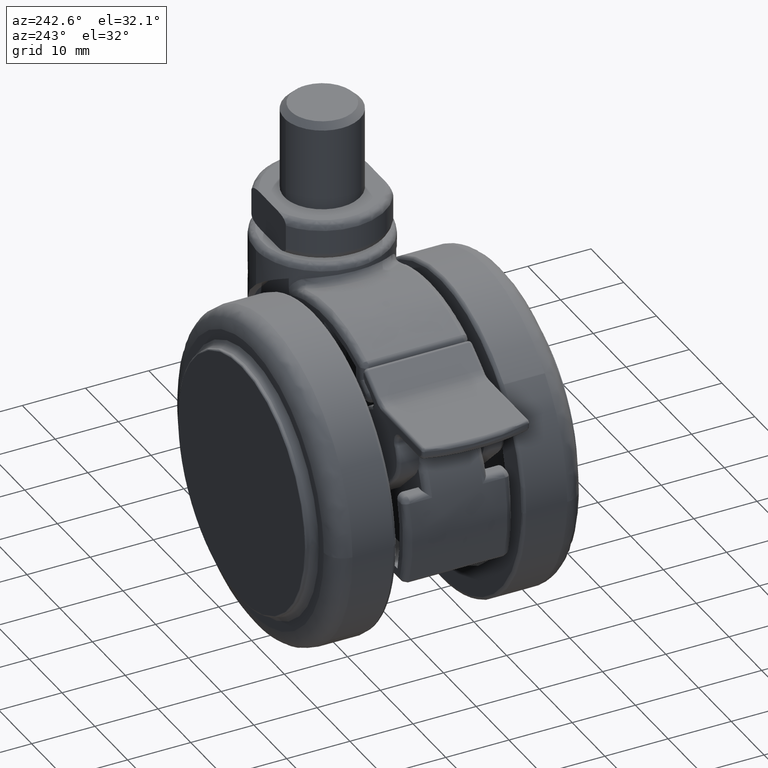
[diagram: clean part render]
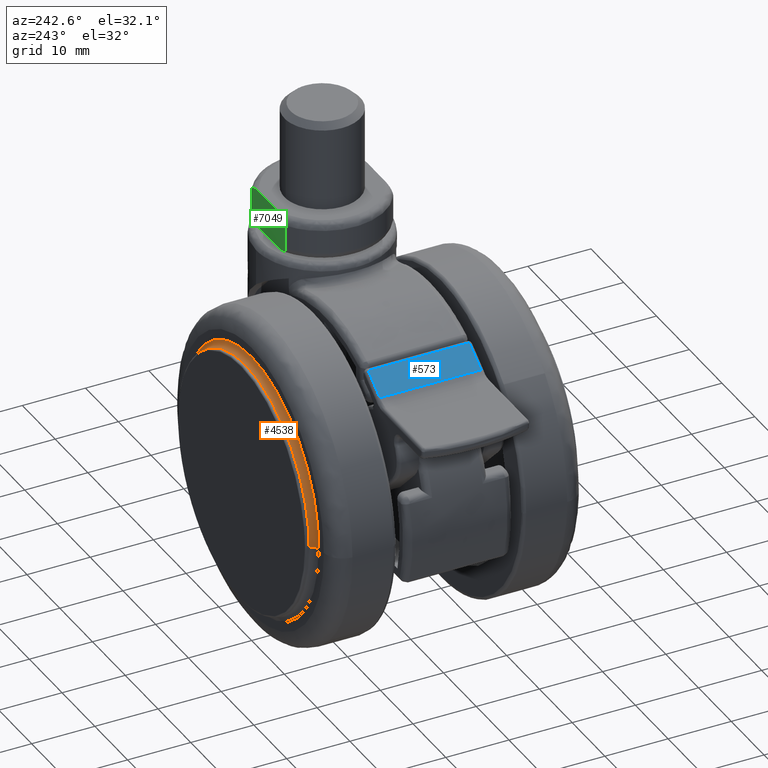
[diagram: same view with three faces highlighted in distinct colors, each labeled with its STEP entity id]
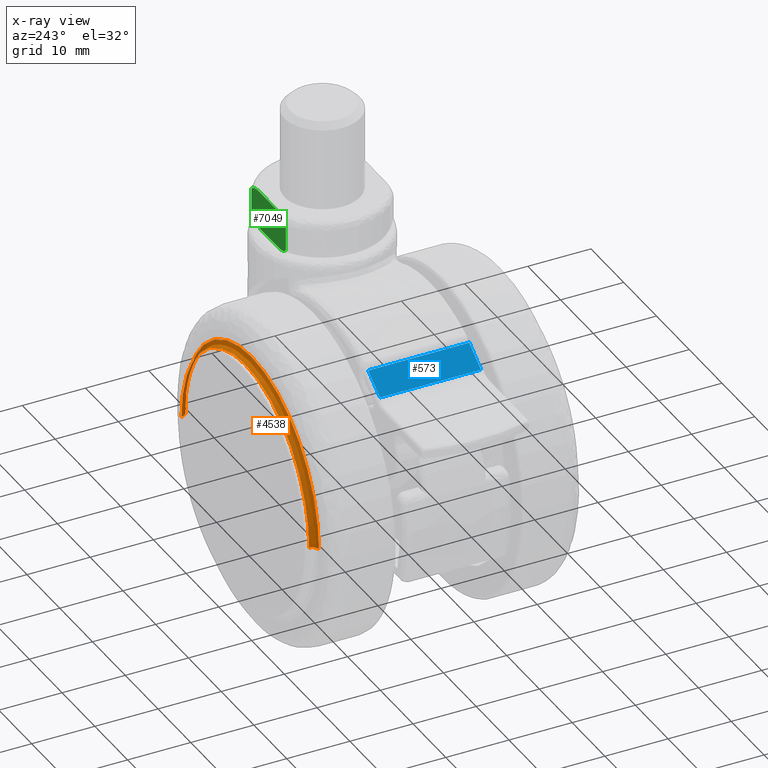
[diagram: x-ray of the same camera — body ghosted, the three highlighted faces saturated]
A machine part, auxiliary view with three faces highlighted in distinct colors.
The next image is the same camera in x-ray (body ghosted, the three faces saturated) — at least one of them is partly hidden behind the body in this view.
Their STEP definitions:

[orange] entity #4538 — the highlighted face is a freeform B-spline surface patch.
#4369=CARTESIAN_POINT('',(2.449213E-015,20.0,20.500000000000000));
#4370=VERTEX_POINT('',#4369);
#4371=CARTESIAN_POINT('',(-20.499999998863380,20.0,8.874474E-016));
#4372=VERTEX_POINT('',#4371);
#4373=CARTESIAN_POINT('',(2.449213E-015,20.0,20.500000000000000));
#4374=CARTESIAN_POINT('',(-20.499999999431690,20.000000000000011,20.500000000000007));
#4375=CARTESIAN_POINT('',(-20.499999998863380,20.0,8.874474E-016));
#4383=(BOUNDED_CURVE()B_SPLINE_CURVE(2,(#4373,#4374,#4375),.UNSPECIFIED.,.F.,.U.)B_SPLINE_CURVE_WITH_KNOTS((3,3),(0.0,0.250000000000000),.UNSPECIFIED.)CURVE()GEOMETRIC_REPRESENTATION_ITEM()RATIONAL_B_SPLINE_CURVE((1.0,0.707106781186548,1.0))REPRESENTATION_ITEM(''));
#4384=EDGE_CURVE('',#4370,#4372,#4383,.T.);
#4401=CARTESIAN_POINT('',(20.499999998863391,20.0,-1.774895E-015));
#4402=VERTEX_POINT('',#4401);
#4416=CARTESIAN_POINT('',(20.499999998863391,20.0,-1.774895E-015));
#4417=CARTESIAN_POINT('',(20.499999999431704,19.999999999999996,20.500000000000007));
#4418=CARTESIAN_POINT('',(2.449213E-015,20.0,20.500000000000000));
#4426=(BOUNDED_CURVE()B_SPLINE_CURVE(2,(#4416,#4417,#4418),.UNSPECIFIED.,.F.,.U.)B_SPLINE_CURVE_WITH_KNOTS((3,3),(0.750000000000000,1.0),.UNSPECIFIED.)CURVE()GEOMETRIC_REPRESENTATION_ITEM()RATIONAL_B_SPLINE_CURVE((1.0,0.707106781186548,1.0))REPRESENTATION_ITEM(''));
#4427=EDGE_CURVE('',#4402,#4370,#4426,.T.);
#4432=CARTESIAN_POINT('',(20.569350631787898,20.002407653462292,-0.575051940104757));
#4433=CARTESIAN_POINT('',(20.569350631787891,20.002407653462292,-0.289200449317168));
#4434=CARTESIAN_POINT('',(20.569350631787888,20.002407653462289,20.569350631787888));
#4435=CARTESIAN_POINT('',(7.487379E-015,20.002407653462289,20.569350631787895));
#4436=CARTESIAN_POINT('',(-20.569350631787870,20.002407653462289,20.569350631787888));
#4437=CARTESIAN_POINT('',(-20.569350631787888,20.002407653462299,-0.289200449317161));
#4438=CARTESIAN_POINT('',(-20.569350631787884,20.002407653462299,-0.575051940104752));
#4439=CARTESIAN_POINT('',(19.422260710472241,19.922664248215781,-0.542983048065561));
#4440=CARTESIAN_POINT('',(19.422260710472248,19.922664248215796,-0.273072622698325));
#4441=CARTESIAN_POINT('',(19.422260710472248,19.922664248215778,19.422260710472234));
#4442=CARTESIAN_POINT('',(7.196667E-015,19.922664248215796,19.422260710472234));
#4443=CARTESIAN_POINT('',(-19.422260710472230,19.922664248215789,19.422260710472244));
#4444=CARTESIAN_POINT('',(-19.422260710472248,19.922664248215796,-0.273072622698318));
#4445=CARTESIAN_POINT('',(-19.422260710472241,19.922664248215799,-0.542983048065556));
#4446=CARTESIAN_POINT('',(19.502433695225506,21.069724225191699,-0.545224423170281));
#4447=CARTESIAN_POINT('',(19.502433695225513,21.069724225191699,-0.274199836854415));
#4448=CARTESIAN_POINT('',(19.502433695225509,21.069724225191706,19.502433695225509));
#4449=CARTESIAN_POINT('',(7.356773E-015,21.069724225191706,19.502433695225502));
#4450=CARTESIAN_POINT('',(-19.502433695225491,21.069724225191706,19.502433695225509));
#4451=CARTESIAN_POINT('',(-19.502433695225498,21.069724225191706,-0.274199836854408));
#4452=CARTESIAN_POINT('',(-19.502433695225506,21.069724225191710,-0.545224423170277));
#4460=(BOUNDED_SURFACE()B_SPLINE_SURFACE(2,2,((#4432,#4439,#4446),(#4433,#4440,#4447),(#4434,#4441,#4448),(#4435,#4442,#4449),(#4436,#4443,#4450),(#4437,#4444,#4451),(#4438,#4445,#4452)),.UNSPECIFIED.,.F.,.F.,.U.)B_SPLINE_SURFACE_WITH_KNOTS((3,1,2,1,3),(3,3),(0.0,0.681608320071531,34.762024323648070,68.842440327224608,69.524048647296141),(0.0,1.822727258770271),.UNSPECIFIED.)GEOMETRIC_REPRESENTATION_ITEM()RATIONAL_B_SPLINE_SURFACE(((0.920730318469245,0.602530283667150,0.915630244211508),(0.915399262344060,0.599041615275418,0.910328717669053),(0.643515399959645,0.421119527297086,0.639950864003831),(0.910068206218876,0.595552946883686,0.905027191126598),(0.643515399959645,0.421119527297086,0.639950864003831),(0.915399262344061,0.599041615275418,0.910328717669053),(0.920730318469245,0.602530283667150,0.915630244211509)))REPRESENTATION_ITEM('')SURFACE());
#4461=ORIENTED_EDGE('',*,*,#4427,.F.);
#4462=CARTESIAN_POINT('',(19.500000000000000,20.999999999800728,-1.774830E-015));
#4463=VERTEX_POINT('',#4462);
#4464=CARTESIAN_POINT('',(20.499999998863384,20.0,-3.549790E-015));
#4465=CARTESIAN_POINT('',(19.500000000199254,20.000000001136598,-3.539365E-015));
#4466=CARTESIAN_POINT('',(19.499999999999993,20.999999999800746,-3.549659E-015));
#4474=(BOUNDED_CURVE()B_SPLINE_CURVE(2,(#4464,#4465,#4466),.UNSPECIFIED.,.F.,.U.)B_SPLINE_CURVE_WITH_KNOTS((3,3),(-1.726807298352588,-0.285995334247499),.UNSPECIFIED.)CURVE()GEOMETRIC_REPRESENTATION_ITEM()RATIONAL_B_SPLINE_CURVE((0.882788775799720,0.622603437981812,0.878205638982627))REPRESENTATION_ITEM(''));
#4475=EDGE_CURVE('',#4402,#4463,#4474,.T.);
#4476=ORIENTED_EDGE('',*,*,#4475,.T.);
#4477=CARTESIAN_POINT('',(14.144800822501709,20.999999999896961,13.422913606656129));
#4478=VERTEX_POINT('',#4477);
#4479=CARTESIAN_POINT('',(19.500000000000000,20.999999999800728,-1.774830E-015));
#4480=CARTESIAN_POINT('',(19.500000000000004,20.999999999840483,7.779710651600526));
#4481=CARTESIAN_POINT('',(14.144800822501724,20.999999999896680,13.422913606656140));
#4489=(BOUNDED_CURVE()B_SPLINE_CURVE(2,(#4479,#4480,#4481),.UNSPECIFIED.,.F.,.U.)B_SPLINE_CURVE_WITH_KNOTS((3,3),(0.750000000000000,0.871049520050849),.UNSPECIFIED.)CURVE()GEOMETRIC_REPRESENTATION_ITEM()RATIONAL_B_SPLINE_CURVE((1.0,0.858181665745933,0.853699661858792))REPRESENTATION_ITEM(''));
#4490=EDGE_CURVE('',#4463,#4478,#4489,.T.);
#4491=ORIENTED_EDGE('',*,*,#4490,.T.);
#4492=CARTESIAN_POINT('',(2.571673E-015,21.0,19.500000000000000));
#4493=VERTEX_POINT('',#4492);
#4494=CARTESIAN_POINT('',(14.144800822501713,20.999999999896961,13.422913606656129));
#4495=CARTESIAN_POINT('',(8.377861672091481,20.999999999957200,19.500000000000000));
#4496=CARTESIAN_POINT('',(2.571673E-015,21.0,19.500000000000000));
#4504=(BOUNDED_CURVE()B_SPLINE_CURVE(2,(#4494,#4495,#4496),.UNSPECIFIED.,.F.,.U.)B_SPLINE_CURVE_WITH_KNOTS((3,3),(0.871049520050849,1.0),.UNSPECIFIED.)CURVE()GEOMETRIC_REPRESENTATION_ITEM()RATIONAL_B_SPLINE_CURVE((0.853699661858792,0.848925115440614,1.0))REPRESENTATION_ITEM(''));
#4505=EDGE_CURVE('',#4478,#4493,#4504,.T.);
#4506=ORIENTED_EDGE('',*,*,#4505,.T.);
#4507=CARTESIAN_POINT('',(-19.500000000000000,20.999999999800739,2.663772E-015));
#4508=VERTEX_POINT('',#4507);
#4509=CARTESIAN_POINT('',(2.571673E-015,21.0,19.500000000000000));
#4510=CARTESIAN_POINT('',(-19.499999999999989,20.999999999900371,19.500000000000004));
#4511=CARTESIAN_POINT('',(-19.500000000000000,20.999999999800739,2.663772E-015));
#4519=(BOUNDED_CURVE()B_SPLINE_CURVE(2,(#4509,#4510,#4511),.UNSPECIFIED.,.F.,.U.)B_SPLINE_CURVE_WITH_KNOTS((3,3),(0.0,0.250000000000000),.UNSPECIFIED.)CURVE()GEOMETRIC_REPRESENTATION_ITEM()RATIONAL_B_SPLINE_CURVE((1.0,0.707106781186548,1.0))REPRESENTATION_ITEM(''));
#4520=EDGE_CURVE('',#4493,#4508,#4519,.T.);
#4521=ORIENTED_EDGE('',*,*,#4520,.T.);
#4522=CARTESIAN_POINT('',(-20.499999998863373,20.0,1.774895E-015));
#4523=CARTESIAN_POINT('',(-19.500000000199254,20.000000001136616,1.769682E-015));
#4524=CARTESIAN_POINT('',(-19.499999999999993,20.999999999800746,1.774830E-015));
#4532=(BOUNDED_CURVE()B_SPLINE_CURVE(2,(#4522,#4523,#4524),.UNSPECIFIED.,.F.,.U.)B_SPLINE_CURVE_WITH_KNOTS((3,3),(-1.726807298352588,-0.285995334247499),.UNSPECIFIED.)CURVE()GEOMETRIC_REPRESENTATION_ITEM()RATIONAL_B_SPLINE_CURVE((0.882788775799720,0.622603437981812,0.878205638982627))REPRESENTATION_ITEM(''));
#4533=EDGE_CURVE('',#4372,#4508,#4532,.T.);
#4534=ORIENTED_EDGE('',*,*,#4533,.F.);
#4535=ORIENTED_EDGE('',*,*,#4384,.F.);
#4536=EDGE_LOOP('',(#4461,#4476,#4491,#4506,#4521,#4534,#4535));
#4537=FACE_OUTER_BOUND('',#4536,.T.);
#4538=ADVANCED_FACE('',(#4537),#4460,.F.);

[blue] entity #573 — the highlighted face is a freeform B-spline surface patch.
#474=CARTESIAN_POINT('',(-16.016400986866248,7.999999999999900,19.198842615100599));
#475=VERTEX_POINT('',#474);
#476=CARTESIAN_POINT('',(-16.016400986866248,-7.999999999999900,19.198842615100599));
#477=VERTEX_POINT('',#476);
#478=CARTESIAN_POINT('',(-16.016400986866248,7.999999999999900,19.198842615100599));
#479=CARTESIAN_POINT('',(-16.016400986866248,-7.999999999999900,19.198842615100599));
#480=QUASI_UNIFORM_CURVE('',1,(#478,#479),.UNSPECIFIED.,.F.,.U.);
#481=EDGE_CURVE('',#475,#477,#480,.T.);
#521=CARTESIAN_POINT('',(-16.182745408519256,8.399999999999894,19.058472203721543));
#522=CARTESIAN_POINT('',(-16.182745408519256,-8.409999999999892,19.058472203721543));
#523=CARTESIAN_POINT('',(-14.348476537609665,8.399999999999894,20.620048632147309));
#524=CARTESIAN_POINT('',(-14.348476537609665,-8.409999999999894,20.620048632147309));
#525=CARTESIAN_POINT('',(-12.249783466908097,8.399999999999896,21.802651958538778));
#526=CARTESIAN_POINT('',(-12.249783466908097,-8.409999999999894,21.802651958538778));
#534=(BOUNDED_SURFACE()B_SPLINE_SURFACE(1,2,((#521,#523,#525),(#522,#524,#526)),.UNSPECIFIED.,.F.,.F.,.U.)B_SPLINE_SURFACE_WITH_KNOTS((2,2),(3,3),(0.0,16.809999999999789),(0.0,4.806776912324903),.UNSPECIFIED.)GEOMETRIC_REPRESENTATION_ITEM()RATIONAL_B_SPLINE_SURFACE(((0.997722785380242,0.992286500500010,0.996042918014174),(0.997722785380242,0.992286500500010,0.996042918014174)))REPRESENTATION_ITEM('')SURFACE());
#535=CARTESIAN_POINT('',(-12.439243801960741,-7.999999999999900,21.694800917014451));
#536=VERTEX_POINT('',#535);
#537=CARTESIAN_POINT('',(-12.439243801960741,7.999999999999900,21.694800917014451));
#538=VERTEX_POINT('',#537);
#539=CARTESIAN_POINT('',(-12.439243801960741,-7.999999999999900,21.694800917014451));
#540=CARTESIAN_POINT('',(-12.439243801960741,7.999999999999900,21.694800917014451));
#541=QUASI_UNIFORM_CURVE('',1,(#539,#540),.UNSPECIFIED.,.F.,.U.);
#542=EDGE_CURVE('',#536,#538,#541,.T.);
#543=ORIENTED_EDGE('',*,*,#542,.T.);
#544=CARTESIAN_POINT('',(-12.439243801960741,7.999999999999900,21.694800917014462));
#545=CARTESIAN_POINT('',(-14.337109361922558,7.999999999999900,20.603449647517660));
#546=CARTESIAN_POINT('',(-16.016400986866230,7.999999999999900,19.198842615100599));
#554=(BOUNDED_CURVE()B_SPLINE_CURVE(2,(#544,#545,#546),.UNSPECIFIED.,.F.,.U.)CURVE()GEOMETRIC_REPRESENTATION_ITEM()QUASI_UNIFORM_CURVE()RATIONAL_B_SPLINE_CURVE((1.0,0.996187560377981,1.0))REPRESENTATION_ITEM(''));
#555=EDGE_CURVE('',#538,#475,#554,.T.);
#556=ORIENTED_EDGE('',*,*,#555,.T.);
#557=ORIENTED_EDGE('',*,*,#481,.T.);
#558=CARTESIAN_POINT('',(-16.016400986866241,-7.999999999999900,19.198842615100592));
#559=CARTESIAN_POINT('',(-14.337109361922565,-7.999999999999900,20.603449647517657));
#560=CARTESIAN_POINT('',(-12.439243801960750,-7.999999999999900,21.694800917014451));
#568=(BOUNDED_CURVE()B_SPLINE_CURVE(2,(#558,#559,#560),.UNSPECIFIED.,.F.,.U.)CURVE()GEOMETRIC_REPRESENTATION_ITEM()QUASI_UNIFORM_CURVE()RATIONAL_B_SPLINE_CURVE((1.0,0.996187560377982,1.0))REPRESENTATION_ITEM(''));
#569=EDGE_CURVE('',#477,#536,#568,.T.);
#570=ORIENTED_EDGE('',*,*,#569,.T.);
#571=EDGE_LOOP('',(#543,#556,#557,#570));
#572=FACE_OUTER_BOUND('',#571,.T.);
#573=ADVANCED_FACE('',(#572),#534,.T.);

[green] entity #7049 — the highlighted face is a freeform B-spline surface patch.
#6386=CARTESIAN_POINT('',(11.732173123573579,8.500000000000000,32.399999999999999));
#6387=VERTEX_POINT('',#6386);
#6441=CARTESIAN_POINT('',(14.361818808345300,8.500000000000000,33.500000000000000));
#6442=VERTEX_POINT('',#6441);
#6466=CARTESIAN_POINT('',(14.361818808345300,8.500000000000000,33.500000000000000));
#6467=CARTESIAN_POINT('',(14.180705627136840,8.500000000000002,33.499999999985732));
#6468=CARTESIAN_POINT('',(13.999987454202589,8.500000000000000,33.496117348309532));
#6469=CARTESIAN_POINT('',(13.639834943331440,8.500000000000002,33.475732855913400));
#6470=CARTESIAN_POINT('',(13.460394029185700,8.500000000000000,33.459295654670271));
#6471=CARTESIAN_POINT('',(13.103486130387759,8.499999999999998,33.407018922843051));
#6472=CARTESIAN_POINT('',(12.925994609388191,8.499999999999998,33.371420567181467));
#6473=CARTESIAN_POINT('',(12.706162219471331,8.500000000000000,33.306949389908773));
#6474=CARTESIAN_POINT('',(12.662300186823300,8.499999999999998,33.293028530757063));
#6475=CARTESIAN_POINT('',(12.574822115581251,8.500000000000002,33.262768865071472));
#6476=CARTESIAN_POINT('',(12.531332009502121,8.499999999999998,33.246465471662113));
#6477=CARTESIAN_POINT('',(12.402925031862379,8.499999999999998,33.193956335203602));
#6478=CARTESIAN_POINT('',(12.319601713528121,8.500000000000000,33.154088392751078));
#6479=CARTESIAN_POINT('',(12.199376864950340,8.500000000000000,33.084141955876412));
#6480=CARTESIAN_POINT('',(12.160148380141001,8.499999999999998,33.059117707352982));
#6481=CARTESIAN_POINT('',(12.084946254120750,8.499999999999998,33.005860821964049));
#6482=CARTESIAN_POINT('',(12.048813441161821,8.499999999999998,32.977545807658103));
#6483=CARTESIAN_POINT('',(11.980056287637771,8.499999999999998,32.916885614065507));
#6484=CARTESIAN_POINT('',(11.947424541836300,8.499999999999998,32.884548941137467));
#6485=CARTESIAN_POINT('',(11.886564120158500,8.499999999999998,32.814817810517013));
#6486=CARTESIAN_POINT('',(11.858234525279840,8.499999999999998,32.777160591513919));
#6487=CARTESIAN_POINT('',(11.809296620395809,8.499999999999998,32.698384118300957));
#6488=CARTESIAN_POINT('',(11.788401054494580,8.499999999999998,32.657015034713417));
#6489=CARTESIAN_POINT('',(11.755366870145391,8.499999999999998,32.569422600380733));
#6490=CARTESIAN_POINT('',(11.743750110243390,8.499999999999996,32.524380629105259));
#6491=CARTESIAN_POINT('',(11.734413445527821,8.500000000000000,32.455865874882001));
#6492=CARTESIAN_POINT('',(11.732633876299481,8.500000000000000,32.432816167630548));
#6493=CARTESIAN_POINT('',(11.732198205700881,8.500000000000000,32.406368663249133));
#6494=CARTESIAN_POINT('',(11.732172444164259,8.500000000000000,32.403186374478103));
#6495=CARTESIAN_POINT('',(11.732173123573579,8.500000000000000,32.399999999999999));
#6496=B_SPLINE_CURVE_WITH_KNOTS('',3,(#6466,#6467,#6468,#6469,#6470,#6471,#6472,#6473,#6474,#6475,#6476,#6477,#6478,#6479,#6480,#6481,#6482,#6483,#6484,#6485,#6486,#6487,#6488,#6489,#6490,#6491,#6492,#6493,#6494,#6495),.UNSPECIFIED.,.F.,.U.,(4,2,2,2,2,2,2,2,2,2,2,2,2,2,4),(0.0,0.031250000000006,0.062500000000012,0.093750000000018,0.101562500000019,0.109375000000021,0.125000000000023,0.132812500000024,0.140625000000025,0.148437500000026,0.156250000000027,0.164062500000028,0.171875000000030,0.175781250000030,0.176314407642958),.UNSPECIFIED.);
#6497=EDGE_CURVE('',#6442,#6387,#6496,.T.);
#6525=CARTESIAN_POINT('',(19.638181191654699,8.500000000000000,33.500000000000000));
#6526=VERTEX_POINT('',#6525);
#6585=CARTESIAN_POINT('',(22.267826876426401,8.500000000000000,32.399999999999999));
#6586=VERTEX_POINT('',#6585);
#6606=CARTESIAN_POINT('',(22.267826876426401,8.500000000000000,32.399999999999999));
#6607=CARTESIAN_POINT('',(22.267827511729120,8.500000000000000,32.410532627479533));
#6608=CARTESIAN_POINT('',(22.267543647990280,8.500000000000000,32.421051208579428));
#6609=CARTESIAN_POINT('',(22.264439141995599,8.500000000000002,32.478146581404843));
#6610=CARTESIAN_POINT('',(22.256336088816699,8.500000000000002,32.523953647868517));
#6611=CARTESIAN_POINT('',(22.236344710736748,8.500000000000000,32.591468994513612));
#6612=CARTESIAN_POINT('',(22.228358089610602,8.499999999999998,32.613746975414820));
#6613=CARTESIAN_POINT('',(22.210281960022019,8.500000000000002,32.656933432088451));
#6614=CARTESIAN_POINT('',(22.200156232647110,8.500000000000000,32.677977107869467));
#6615=CARTESIAN_POINT('',(22.166806220450230,8.500000000000000,32.739606082652209));
#6616=CARTESIAN_POINT('',(22.140371612250139,8.500000000000002,32.778963178361018));
#6617=CARTESIAN_POINT('',(22.082425731231890,8.499999999999998,32.852151114619417));
#6618=CARTESIAN_POINT('',(22.050855106643521,8.499999999999996,32.886212133546813));
#6619=CARTESIAN_POINT('',(21.983545437034980,8.500000000000002,32.950269628953968));
#6620=CARTESIAN_POINT('',(21.947728350745312,8.500000000000000,32.980310022340007));
#6621=CARTESIAN_POINT('',(21.872844526898430,8.500000000000000,33.036717624212109));
#6622=CARTESIAN_POINT('',(21.834254209839258,8.499999999999998,33.062742935964302));
#6623=CARTESIAN_POINT('',(21.715715075531399,8.500000000000000,33.135567713053121));
#6624=CARTESIAN_POINT('',(21.633030704673100,8.500000000000000,33.177177917418213));
#6625=CARTESIAN_POINT('',(21.462386278834700,8.499999999999998,33.250390515804050));
#6626=CARTESIAN_POINT('',(21.374131792486619,8.500000000000000,33.281983120571347));
#6627=CARTESIAN_POINT('',(21.108224087346130,8.499999999999998,33.363515575781712));
#6628=CARTESIAN_POINT('',(20.927750763652220,8.499999999999998,33.401310932275187));
#6629=CARTESIAN_POINT('',(20.654134111905240,8.500000000000000,33.442969462979747));
#6630=CARTESIAN_POINT('',(20.562427895770561,8.500000000000000,33.454265986397367));
#6631=CARTESIAN_POINT('',(20.378206221759228,8.500000000000000,33.472673293497422));
#6632=CARTESIAN_POINT('',(20.285578733793141,8.500000000000000,33.479784587442573));
#6633=CARTESIAN_POINT('',(20.008003142707281,8.500000000000002,33.495971545967443));
#6634=CARTESIAN_POINT('',(19.823060172416021,8.500000000000004,33.499999999981547));
#6635=CARTESIAN_POINT('',(19.638181191654699,8.500000000000000,33.500000000000000));
#6636=B_SPLINE_CURVE_WITH_KNOTS('',3,(#6606,#6607,#6608,#6609,#6610,#6611,#6612,#6613,#6614,#6615,#6616,#6617,#6618,#6619,#6620,#6621,#6622,#6623,#6624,#6625,#6626,#6627,#6628,#6629,#6630,#6631,#6632,#6633,#6634,#6635),.UNSPECIFIED.,.F.,.U.,(4,2,2,2,2,2,2,2,2,2,2,2,2,2,4),(0.826376939406728,0.828125000000059,0.835937500000057,0.839843750000056,0.843750000000054,0.851562500000052,0.859375000000050,0.867187500000048,0.875000000000045,0.890625000000040,0.906250000000035,0.937500000000024,0.953125000000018,0.968750000000012,1.0),.UNSPECIFIED.);
#6637=EDGE_CURVE('',#6586,#6526,#6636,.T.);
#6653=CARTESIAN_POINT('',(14.361818808345300,8.500000000000000,33.500000000000000));
#6654=CARTESIAN_POINT('',(19.638181191654699,8.500000000000000,33.500000000000000));
#6655=QUASI_UNIFORM_CURVE('',1,(#6653,#6654),.UNSPECIFIED.,.F.,.U.);
#6656=EDGE_CURVE('',#6442,#6526,#6655,.T.);
#6691=CARTESIAN_POINT('',(22.267826876426451,8.500000000000000,28.600000000000001));
#6692=VERTEX_POINT('',#6691);
#6749=CARTESIAN_POINT('',(19.638181191654699,8.500000000000000,27.500000000000000));
#6750=VERTEX_POINT('',#6749);
#6774=CARTESIAN_POINT('',(19.638181191654699,8.500000000000000,27.500000000000000));
#6775=CARTESIAN_POINT('',(19.819294372863169,8.500000000000002,27.500000000014300));
#6776=CARTESIAN_POINT('',(20.000012545797428,8.499999999999998,27.503882651690478));
#6777=CARTESIAN_POINT('',(20.360165056668588,8.500000000000000,27.524267144086618));
#6778=CARTESIAN_POINT('',(20.539605970814328,8.500000000000000,27.540704345329729));
#6779=CARTESIAN_POINT('',(20.896513869612260,8.500000000000000,27.592981077156960));
#6780=CARTESIAN_POINT('',(21.074005390611841,8.500000000000000,27.628579432818508));
#6781=CARTESIAN_POINT('',(21.293837780528708,8.499999999999998,27.693050610091220));
#6782=CARTESIAN_POINT('',(21.337699813176741,8.500000000000000,27.706971469242941));
#6783=CARTESIAN_POINT('',(21.425177884418790,8.499999999999998,27.737231134928528));
#6784=CARTESIAN_POINT('',(21.468667990497920,8.499999999999998,27.753534528337880));
#6785=CARTESIAN_POINT('',(21.597074968137669,8.500000000000000,27.806043664796409));
#6786=CARTESIAN_POINT('',(21.680398286471931,8.500000000000002,27.845911607248940));
#6787=CARTESIAN_POINT('',(21.800623135049701,8.500000000000000,27.915858044123581));
#6788=CARTESIAN_POINT('',(21.839851619859051,8.500000000000000,27.940882292647029));
#6789=CARTESIAN_POINT('',(21.915053745879291,8.500000000000002,27.994139178035951));
#6790=CARTESIAN_POINT('',(21.951186558838231,8.500000000000002,28.022454192341929));
#6791=CARTESIAN_POINT('',(22.019943712362281,8.500000000000002,28.083114385934500));
#6792=CARTESIAN_POINT('',(22.052575458163741,8.500000000000000,28.115451058862551));
#6793=CARTESIAN_POINT('',(22.113435879841539,8.499999999999998,28.185182189483019));
#6794=CARTESIAN_POINT('',(22.141765474720199,8.500000000000002,28.222839408486092));
#6795=CARTESIAN_POINT('',(22.190703379604230,8.500000000000000,28.301615881699050));
#6796=CARTESIAN_POINT('',(22.211598945505472,8.500000000000000,28.342984965286579));
#6797=CARTESIAN_POINT('',(22.244633129854641,8.500000000000002,28.430577399619271));
#6798=CARTESIAN_POINT('',(22.256249889756639,8.500000000000002,28.475619370894769));
#6799=CARTESIAN_POINT('',(22.265586554472218,8.499999999999998,28.544134125118031));
#6800=CARTESIAN_POINT('',(22.267366123700558,8.500000000000000,28.567183832369480));
#6801=CARTESIAN_POINT('',(22.267801794299160,8.500000000000000,28.593631336750889));
#6802=CARTESIAN_POINT('',(22.267827555835769,8.500000000000000,28.596813625521911));
#6803=CARTESIAN_POINT('',(22.267826876426451,8.500000000000000,28.600000000000001));
#6804=B_SPLINE_CURVE_WITH_KNOTS('',3,(#6774,#6775,#6776,#6777,#6778,#6779,#6780,#6781,#6782,#6783,#6784,#6785,#6786,#6787,#6788,#6789,#6790,#6791,#6792,#6793,#6794,#6795,#6796,#6797,#6798,#6799,#6800,#6801,#6802,#6803),.UNSPECIFIED.,.F.,.U.,(4,2,2,2,2,2,2,2,2,2,2,2,2,2,4),(0.0,0.031250000000001,0.062500000000002,0.093750000000003,0.101562500000004,0.109375000000004,0.125000000000005,0.132812500000005,0.140625000000005,0.148437500000005,0.156250000000005,0.164062500000005,0.171875000000006,0.175781250000006,0.176314407642932),.UNSPECIFIED.);
#6805=EDGE_CURVE('',#6750,#6692,#6804,.T.);
#6835=CARTESIAN_POINT('',(14.361818808345300,8.500000000000000,27.500000000000000));
#6836=VERTEX_POINT('',#6835);
#6895=CARTESIAN_POINT('',(11.732173123573579,8.500000000000000,28.600000000000001));
#6896=VERTEX_POINT('',#6895);
#6916=CARTESIAN_POINT('',(11.732173123573579,8.500000000000000,28.600000000000001));
#6917=CARTESIAN_POINT('',(11.732172488270869,8.500000000000000,28.589467372520460));
#6918=CARTESIAN_POINT('',(11.732456352009709,8.499999999999998,28.578948791420562));
#6919=CARTESIAN_POINT('',(11.735560858004391,8.499999999999996,28.521853418595128));
#6920=CARTESIAN_POINT('',(11.743663911183299,8.499999999999996,28.476046352131451));
#6921=CARTESIAN_POINT('',(11.763655289263230,8.500000000000000,28.408531005486399));
#6922=CARTESIAN_POINT('',(11.771641910389389,8.499999999999996,28.386253024585159));
#6923=CARTESIAN_POINT('',(11.789718039977981,8.500000000000000,28.343066567911549));
#6924=CARTESIAN_POINT('',(11.799843767352890,8.499999999999998,28.322022892130509));
#6925=CARTESIAN_POINT('',(11.833193779549759,8.499999999999996,28.260393917347770));
#6926=CARTESIAN_POINT('',(11.859628387749860,8.499999999999993,28.221036821638972));
#6927=CARTESIAN_POINT('',(11.917574268768110,8.499999999999996,28.147848885380562));
#6928=CARTESIAN_POINT('',(11.949144893356481,8.499999999999996,28.113787866453169));
#6929=CARTESIAN_POINT('',(12.016454562965039,8.499999999999995,28.049730371046039));
#6930=CARTESIAN_POINT('',(12.052271649254690,8.499999999999993,28.019689977659979));
#6931=CARTESIAN_POINT('',(12.127155473101579,8.499999999999996,27.963282375787891));
#6932=CARTESIAN_POINT('',(12.165745790160750,8.499999999999996,27.937257064035681));
#6933=CARTESIAN_POINT('',(12.284284924468620,8.499999999999998,27.864432286946869));
#6934=CARTESIAN_POINT('',(12.366969295326900,8.499999999999998,27.822822082581780));
#6935=CARTESIAN_POINT('',(12.537613721165300,8.499999999999996,27.749609484195940));
#6936=CARTESIAN_POINT('',(12.625868207513379,8.499999999999998,27.718016879428649));
#6937=CARTESIAN_POINT('',(12.891775912653889,8.500000000000000,27.636484424218299));
#6938=CARTESIAN_POINT('',(13.072249236347810,8.500000000000002,27.598689067724820));
#6939=CARTESIAN_POINT('',(13.345865888094780,8.499999999999998,27.557030537020250));
#6940=CARTESIAN_POINT('',(13.437572104229440,8.500000000000000,27.545734013602608));
#6941=CARTESIAN_POINT('',(13.621793778240759,8.499999999999998,27.527326706502588));
#6942=CARTESIAN_POINT('',(13.714421266206850,8.500000000000002,27.520215412557430));
#6943=CARTESIAN_POINT('',(13.991996857292740,8.500000000000000,27.504028454032600));
#6944=CARTESIAN_POINT('',(14.176939827584000,8.500000000000000,27.500000000018471));
#6945=CARTESIAN_POINT('',(14.361818808345300,8.500000000000000,27.500000000000000));
#6946=B_SPLINE_CURVE_WITH_KNOTS('',3,(#6916,#6917,#6918,#6919,#6920,#6921,#6922,#6923,#6924,#6925,#6926,#6927,#6928,#6929,#6930,#6931,#6932,#6933,#6934,#6935,#6936,#6937,#6938,#6939,#6940,#6941,#6942,#6943,#6944,#6945),.UNSPECIFIED.,.F.,.U.,(4,2,2,2,2,2,2,2,2,2,2,2,2,2,4),(0.826376939406633,0.828124999999965,0.835937499999966,0.839843749999967,0.843749999999968,0.851562499999970,0.859374999999971,0.867187499999973,0.874999999999975,0.890624999999978,0.906249999999981,0.937499999999988,0.953124999999991,0.968749999999994,1.0),.UNSPECIFIED.);
#6947=EDGE_CURVE('',#6896,#6836,#6946,.T.);
#6972=CARTESIAN_POINT('',(22.267826876426401,8.500000000000000,32.399999999999999));
#6973=CARTESIAN_POINT('',(22.267826876426451,8.500000000000000,28.600000000000001));
#6974=QUASI_UNIFORM_CURVE('',1,(#6972,#6973),.UNSPECIFIED.,.F.,.U.);
#6975=EDGE_CURVE('',#6586,#6692,#6974,.T.);
#7001=CARTESIAN_POINT('',(11.732173123573579,8.500000000000000,28.600000000000001));
#7002=CARTESIAN_POINT('',(11.732173123573579,8.500000000000000,32.399999999999999));
#7003=QUASI_UNIFORM_CURVE('',1,(#7001,#7002),.UNSPECIFIED.,.F.,.U.);
#7004=EDGE_CURVE('',#6896,#6387,#7003,.T.);
#7030=CARTESIAN_POINT('',(11.205917239038721,8.500000000000000,27.200300011629160));
#7031=CARTESIAN_POINT('',(11.205917239038721,8.500000000000000,33.799700149303384));
#7032=CARTESIAN_POINT('',(22.794083043549570,8.500000000000000,27.200300011629160));
#7033=CARTESIAN_POINT('',(22.794083043549570,8.500000000000000,33.799700149303384));
#7034=B_SPLINE_SURFACE_WITH_KNOTS('',1,1,((#7030,#7032),(#7031,#7033)),.UNSPECIFIED.,.F.,.F.,.U.,(2,2),(2,2),(0.0,6.599400137674213),(0.0,11.588165804510851),.UNSPECIFIED.);
#7035=ORIENTED_EDGE('',*,*,#7004,.T.);
#7036=ORIENTED_EDGE('',*,*,#6497,.F.);
#7037=ORIENTED_EDGE('',*,*,#6656,.T.);
#7038=ORIENTED_EDGE('',*,*,#6637,.F.);
#7039=ORIENTED_EDGE('',*,*,#6975,.T.);
#7040=ORIENTED_EDGE('',*,*,#6805,.F.);
#7041=CARTESIAN_POINT('',(14.361818808345300,8.500000000000000,27.500000000000000));
#7042=CARTESIAN_POINT('',(19.638181191654699,8.500000000000000,27.500000000000000));
#7043=QUASI_UNIFORM_CURVE('',1,(#7041,#7042),.UNSPECIFIED.,.F.,.U.);
#7044=EDGE_CURVE('',#6836,#6750,#7043,.T.);
#7045=ORIENTED_EDGE('',*,*,#7044,.F.);
#7046=ORIENTED_EDGE('',*,*,#6947,.F.);
#7047=EDGE_LOOP('',(#7035,#7036,#7037,#7038,#7039,#7040,#7045,#7046));
#7048=FACE_OUTER_BOUND('',#7047,.T.);
#7049=ADVANCED_FACE('',(#7048),#7034,.T.);